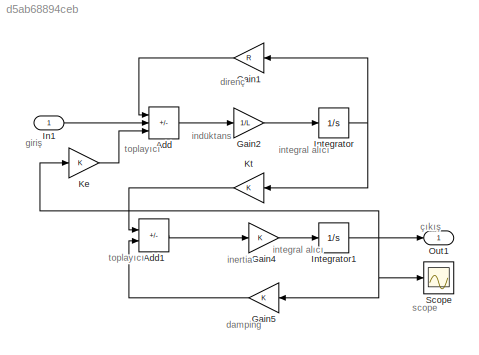
MODEL slx_d5ab68894ceb
KIND model
CONFIG AbsTol = auto
CONFIG EnableMultiTasking = off
CONFIG FixedStep = auto
CONFIG MaxStep = auto
CONFIG MinStep = auto
CONFIG RelTol = 1e-3
CONFIG SampleTimeConstraint = Unconstrained
CONFIG SolverName = VariableStepAuto
CONFIG StartTime = 0.0
CONFIG StopTime = 10.0
BLOCK [Sum] Add
  IconShape = rectangular
  Inputs = -+-
BLOCK [Sum] Add1
  IconShape = rectangular
  Inputs = +-
BLOCK [Gain] Gain1
  Gain = R
  NameLocation = top
BLOCK [Gain] Gain2
  Gain = 1/L
BLOCK [Gain] Gain4
BLOCK [Gain] Gain5
  NameLocation = top
BLOCK [Inport] In1
BLOCK [Integrator] Integrator
BLOCK [Integrator] Integrator1
BLOCK [Gain] Ke
  Gain = K
BLOCK [Gain] Kt
  Gain = K
  NameLocation = top
BLOCK [Outport] Out1
BLOCK [Scope] Scope
  Floating = off
  NumInputPorts = 1
  ScopeSpecificationString = Simulink.scopes.TimeScopeBlockCfg('CurrentConfiguration', extmgr.ConfigurationSet(extmgr.Configuration('Core','General UI',true),extmgr.Configuration('Core','Source UI',true),extmgr.Configuration('Sources','WiredSimulink',true),extmgr.Configuration('Visuals','Time Domain',true,'SerializedDisplays',{struct('MinYLimReal','-1.00000','MaxYLimReal','1.00000','YLabelReal','','MinYLimMag','0.00000','MaxY...<+1331ch>
ANNOTATION (root): damping
ANNOTATION (root): direnç
ANNOTATION (root): giriş
ANNOTATION (root): indüktans
ANNOTATION (root): inertia
ANNOTATION (root): integral alıcı
ANNOTATION (root): scope
ANNOTATION (root): toplayıcı
ANNOTATION (root): çıkış
LINE Add1:1 -> Gain4:1
LINE Add:1 -> Gain2:1
LINE Gain1:1 -> Add:1
LINE Gain2:1 -> Integrator:1
LINE Gain4:1 -> Integrator1:1
LINE Gain5:1 -> Add1:2
LINE In1:1 -> Add:2
NET Integrator1:1 -> Gain5:1, Ke:1, Out1:1, Scope:1
NET Integrator:1 -> Gain1:1, Kt:1
LINE Ke:1 -> Add:3
LINE Kt:1 -> Add1:1
note: NET lines group one-source signal fan-out (src -> all destinations, sorted); 1:1 wires keep LINE
